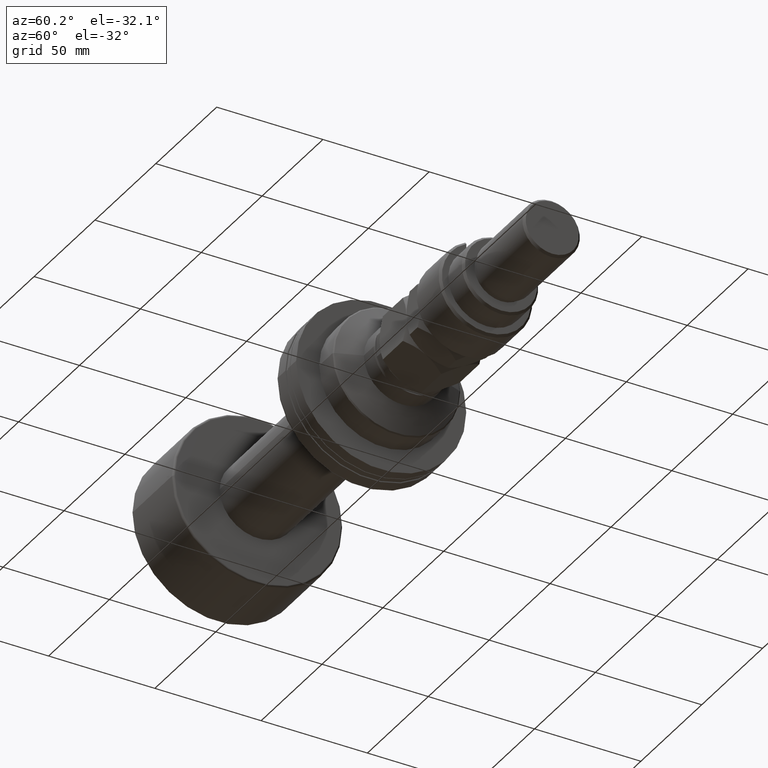
[diagram: clean part render]
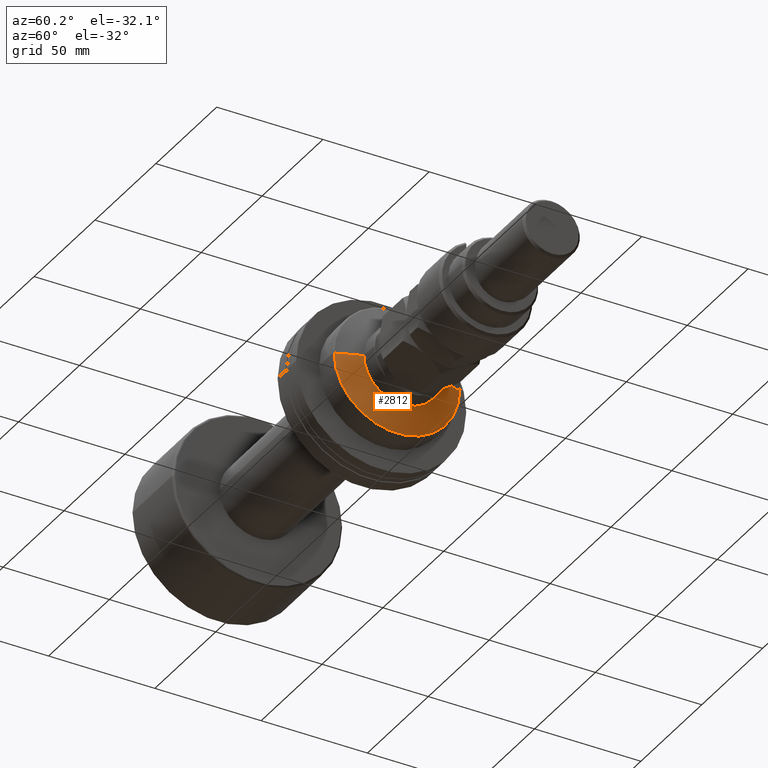
[diagram: same view with one face highlighted and labeled with its STEP entity id]
A machine part, auxiliary view. The second image highlights one B-rep face of the part: STEP entity #2812.
In plain terms, the highlighted conical surface has half-angle 69.38 deg.
Its self-contained STEP definition (entity closure, byte-faithful):
#283 = EDGE_CURVE ( 'NONE', #4475, #3666, #3369, .T. ) ;
#396 = CARTESIAN_POINT ( 'NONE',  ( -11.10000000000068532, 29.49999999999998579, 3.612708057484689237E-15 ) ) ;
#548 = CIRCLE ( 'NONE', #794, 18.00000000000000000 ) ;
#794 = AXIS2_PLACEMENT_3D ( 'NONE', #2622, #1740, #4245 ) ;
#882 = VECTOR ( 'NONE', #4617, 1000.000000000000000 ) ;
#981 = LINE ( 'NONE', #2224, #882 ) ;
#984 = EDGE_CURVE ( 'NONE', #3666, #1702, #2562, .T. ) ;
#1272 = ORIENTED_EDGE ( 'NONE', *, *, #283, .T. ) ;
#1309 = CARTESIAN_POINT ( 'NONE',  ( -11.10000000000066578, -29.49999999999997158, 0.000000000000000000 ) ) ;
#1466 = EDGE_LOOP ( 'NONE', ( #3256, #4889, #1272, #2759, #2530 ) ) ;
#1468 = AXIS2_PLACEMENT_3D ( 'NONE', #2106, #1727, #4116 ) ;
#1557 = DIRECTION ( 'NONE',  ( 3.854941057726238097E-16, -1.000000000000000000, 0.000000000000000000 ) ) ;
#1667 = CARTESIAN_POINT ( 'NONE',  ( -11.10000000000067466, 7.169774422920598684E-15, 0.000000000000000000 ) ) ;
#1702 = VERTEX_POINT ( 'NONE', #4360 ) ;
#1727 = DIRECTION ( 'NONE',  ( -1.000000000000000000, -3.738146982434194072E-16, 0.000000000000000000 ) ) ;
#1740 = DIRECTION ( 'NONE',  ( -1.000000000000000000, -3.738146982434194072E-16, 0.000000000000000000 ) ) ;
#1741 = DIRECTION ( 'NONE',  ( 1.000000000000000000, 3.738146982434194072E-16, -0.000000000000000000 ) ) ;
#1763 = CARTESIAN_POINT ( 'NONE',  ( -6.772881355932611314, -17.99999999999998934, 0.000000000000000000 ) ) ;
#1971 = EDGE_CURVE ( 'NONE', #2959, #4475, #548, .T. ) ;
#2106 = CARTESIAN_POINT ( 'NONE',  ( -11.10000000000067466, 7.169774422920598684E-15, 0.000000000000000000 ) ) ;
#2164 = FACE_OUTER_BOUND ( 'NONE', #1466, .T. ) ;
#2224 = CARTESIAN_POINT ( 'NONE',  ( -11.10000000000068532, 29.49999999999998579, 3.612708057484689237E-15 ) ) ;
#2279 = EDGE_CURVE ( 'NONE', #2959, #3575, #981, .T. ) ;
#2516 = DIRECTION ( 'NONE',  ( -3.528251137579949064E-16, 1.000000000000000000, 0.000000000000000000 ) ) ;
#2530 = ORIENTED_EDGE ( 'NONE', *, *, #4937, .T. ) ;
#2562 = LINE ( 'NONE', #1309, #4727 ) ;
#2622 = CARTESIAN_POINT ( 'NONE',  ( -6.772881355932618419, 8.787314973116373205E-15, 0.000000000000000000 ) ) ;
#2642 = AXIS2_PLACEMENT_3D ( 'NONE', #1667, #1741, #2516 ) ;
#2759 = ORIENTED_EDGE ( 'NONE', *, *, #984, .T. ) ;
#2812 = ADVANCED_FACE ( 'NONE', ( #2164 ), #3726, .T. ) ;
#2959 = VERTEX_POINT ( 'NONE', #5049 ) ;
#3256 = ORIENTED_EDGE ( 'NONE', *, *, #2279, .F. ) ;
#3369 = CIRCLE ( 'NONE', #4560, 18.00000000000000000 ) ;
#3554 = CARTESIAN_POINT ( 'NONE',  ( -6.772881355932618419, 8.787314973116373205E-15, 0.000000000000000000 ) ) ;
#3575 = VERTEX_POINT ( 'NONE', #396 ) ;
#3666 = VERTEX_POINT ( 'NONE', #1763 ) ;
#3726 = CONICAL_SURFACE ( 'NONE', #1468, 29.49999999999997868, 1.210911657727792079 ) ;
#4013 = CARTESIAN_POINT ( 'NONE',  ( -6.772881355932618419, 4.622231866529366047E-30, -18.00000000000000000 ) ) ;
#4116 = DIRECTION ( 'NONE',  ( 3.528251137579949064E-16, -1.000000000000000000, 0.000000000000000000 ) ) ;
#4245 = DIRECTION ( 'NONE',  ( 3.854941057726238097E-16, -1.000000000000000000, 0.000000000000000000 ) ) ;
#4360 = CARTESIAN_POINT ( 'NONE',  ( -11.10000000000066578, -29.49999999999997158, 0.000000000000000000 ) ) ;
#4475 = VERTEX_POINT ( 'NONE', #4013 ) ;
#4560 = AXIS2_PLACEMENT_3D ( 'NONE', #3554, #5170, #1557 ) ;
#4592 = CIRCLE ( 'NONE', #2642, 29.49999999999997868 ) ;
#4617 = DIRECTION ( 'NONE',  ( -0.3521662930787216594, 0.9359374455695166350, 1.146192796918858776E-16 ) ) ;
#4727 = VECTOR ( 'NONE', #4998, 1000.000000000000000 ) ;
#4889 = ORIENTED_EDGE ( 'NONE', *, *, #1971, .T. ) ;
#4937 = EDGE_CURVE ( 'NONE', #1702, #3575, #4592, .T. ) ;
#4998 = DIRECTION ( 'NONE',  ( -0.3521662930787209933, -0.9359374455695168571, 0.000000000000000000 ) ) ;
#5049 = CARTESIAN_POINT ( 'NONE',  ( -6.772881355932625524, 18.00000000000001066, 2.908536147974962135E-15 ) ) ;
#5170 = DIRECTION ( 'NONE',  ( -1.000000000000000000, -3.738146982434194072E-16, 0.000000000000000000 ) ) ;